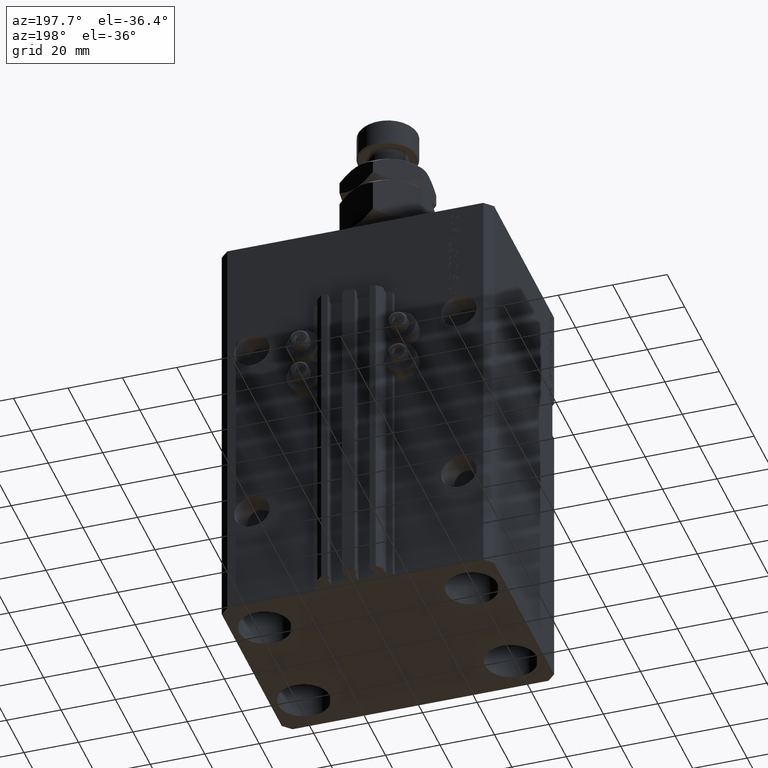
[diagram: clean part render]
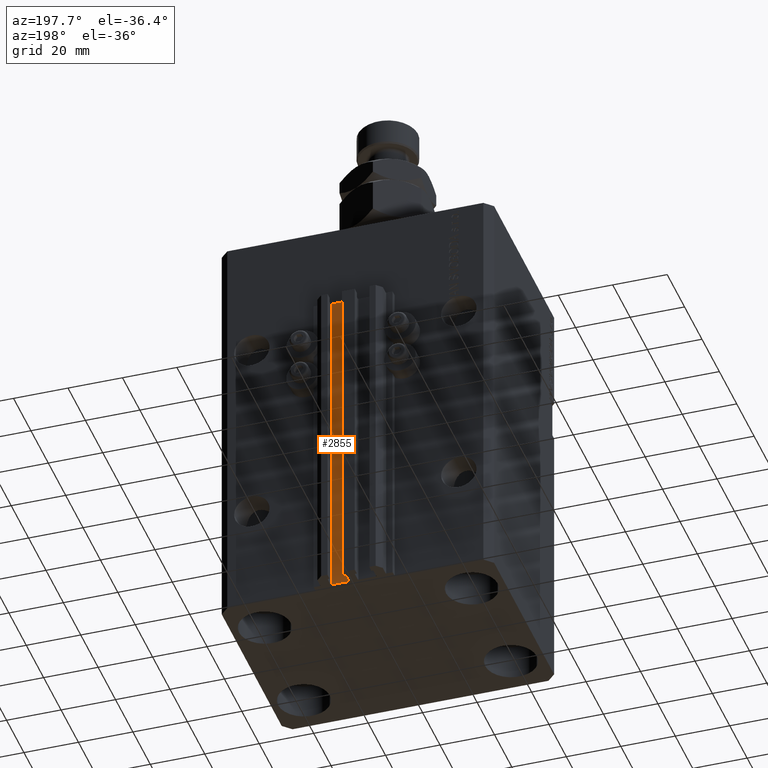
[diagram: same view with one face highlighted and labeled with its STEP entity id]
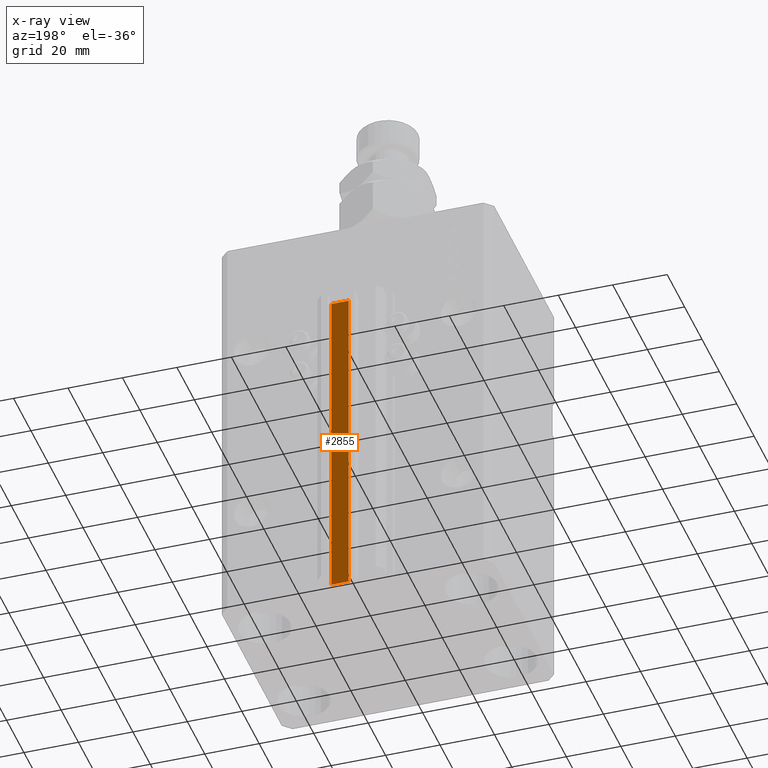
[diagram: x-ray of the same camera — body ghosted, the highlighted face saturated]
A machine part, auxiliary view. The second image highlights one B-rep face of the part: STEP entity #2855.
The next image is the same camera in x-ray: the body ghosted, the highlighted face saturated — about 0% of this face is hidden behind the body in this view.
In plain terms, the highlighted planar face has unit normal (-0, 1, 0).
Its self-contained STEP definition (entity closure, byte-faithful):
#214 = DIRECTION ( 'NONE',  ( -1.000000000000000000, -1.084202172485504828E-15, 0.000000000000000000 ) ) ;
#2855 = ADVANCED_FACE ( 'NONE', ( #14225 ), #49046, .T. ) ;
#3470 = VECTOR ( 'NONE', #214, 1000.000000000000000 ) ;
#4088 = EDGE_LOOP ( 'NONE', ( #41637, #43718, #24661, #13252 ) ) ;
#4619 = VERTEX_POINT ( 'NONE', #20080 ) ;
#5226 = CARTESIAN_POINT ( 'NONE',  ( 8.199999999999999289, 39.50000000000000711, -155.0000000000000000 ) ) ;
#6333 = EDGE_CURVE ( 'NONE', #32463, #35967, #30157, .T. ) ;
#7803 = AXIS2_PLACEMENT_3D ( 'NONE', #36702, #10937, #14470 ) ;
#8274 = DIRECTION ( 'NONE',  ( 0.000000000000000000, 0.000000000000000000, 1.000000000000000000 ) ) ;
#9993 = DIRECTION ( 'NONE',  ( 0.000000000000000000, 0.000000000000000000, 1.000000000000000000 ) ) ;
#10419 = VECTOR ( 'NONE', #9993, 1000.000000000000000 ) ;
#10937 = DIRECTION ( 'NONE',  ( -1.084202172485505026E-15, 1.000000000000000000, 0.000000000000000000 ) ) ;
#11009 = CARTESIAN_POINT ( 'NONE',  ( 8.199999999999999289, 39.50000000000000711, -33.00000000000000000 ) ) ;
#11059 = CARTESIAN_POINT ( 'NONE',  ( 8.199999999999999289, 39.50000000000000711, -155.0000000000000000 ) ) ;
#11982 = CARTESIAN_POINT ( 'NONE',  ( 8.199999999999999289, 39.50000000000000711, -33.00000000000000000 ) ) ;
#13252 = ORIENTED_EDGE ( 'NONE', *, *, #32287, .T. ) ;
#14225 = FACE_OUTER_BOUND ( 'NONE', #4088, .T. ) ;
#14470 = DIRECTION ( 'NONE',  ( -1.000000000000000000, -1.084202172485505026E-15, 0.000000000000000000 ) ) ;
#19563 = DIRECTION ( 'NONE',  ( -1.000000000000000000, -1.084202172485504828E-15, 0.000000000000000000 ) ) ;
#20080 = CARTESIAN_POINT ( 'NONE',  ( 8.199999999999999289, 39.50000000000000711, -155.0000000000000000 ) ) ;
#24368 = CARTESIAN_POINT ( 'NONE',  ( 1.800000000000000933, 39.50000000000000000, -155.0000000000000000 ) ) ;
#24391 = LINE ( 'NONE', #5226, #32448 ) ;
#24661 = ORIENTED_EDGE ( 'NONE', *, *, #43415, .T. ) ;
#28795 = VECTOR ( 'NONE', #19563, 1000.000000000000000 ) ;
#30157 = LINE ( 'NONE', #11009, #28795 ) ;
#30502 = CARTESIAN_POINT ( 'NONE',  ( 1.800000000000000933, 39.50000000000000000, -155.0000000000000000 ) ) ;
#32287 = EDGE_CURVE ( 'NONE', #36391, #35967, #33190, .T. ) ;
#32448 = VECTOR ( 'NONE', #8274, 1000.000000000000000 ) ;
#32463 = VERTEX_POINT ( 'NONE', #11982 ) ;
#33190 = LINE ( 'NONE', #24368, #10419 ) ;
#35967 = VERTEX_POINT ( 'NONE', #38738 ) ;
#36391 = VERTEX_POINT ( 'NONE', #30502 ) ;
#36702 = CARTESIAN_POINT ( 'NONE',  ( 8.199999999999999289, 39.50000000000000711, -155.0000000000000000 ) ) ;
#38738 = CARTESIAN_POINT ( 'NONE',  ( 1.800000000000000933, 39.50000000000000000, -33.00000000000000000 ) ) ;
#41637 = ORIENTED_EDGE ( 'NONE', *, *, #6333, .F. ) ;
#43415 = EDGE_CURVE ( 'NONE', #4619, #36391, #46392, .T. ) ;
#43494 = EDGE_CURVE ( 'NONE', #4619, #32463, #24391, .T. ) ;
#43718 = ORIENTED_EDGE ( 'NONE', *, *, #43494, .F. ) ;
#46392 = LINE ( 'NONE', #11059, #3470 ) ;
#49046 = PLANE ( 'NONE',  #7803 ) ;